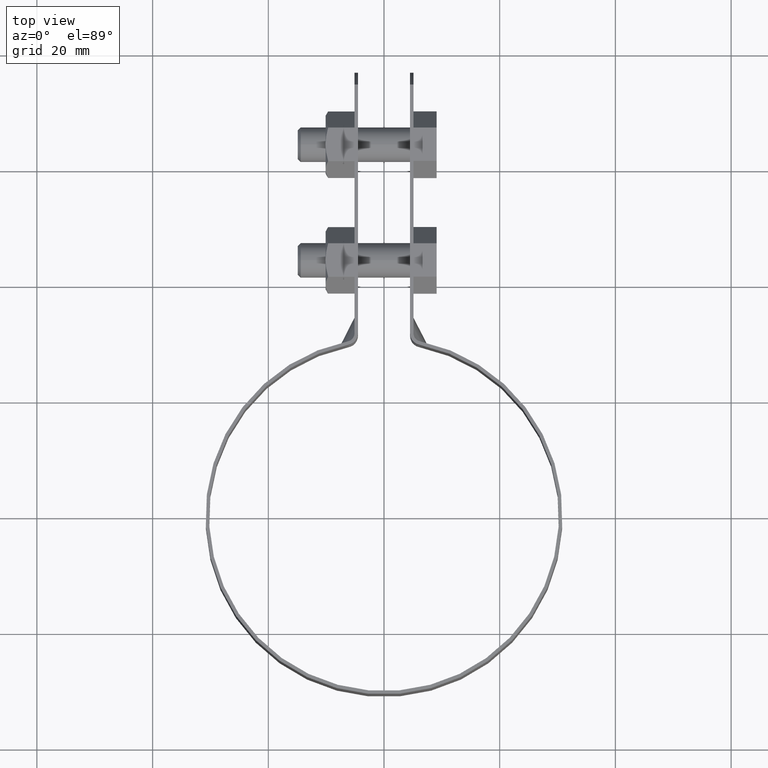
[diagram: clean part render]
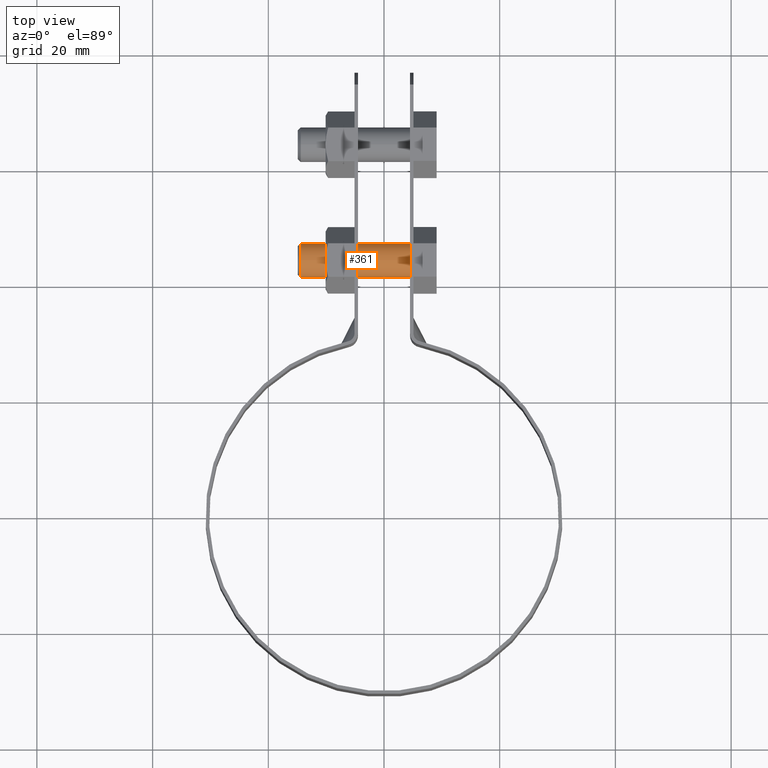
[diagram: same view with one face highlighted and labeled with its STEP entity id]
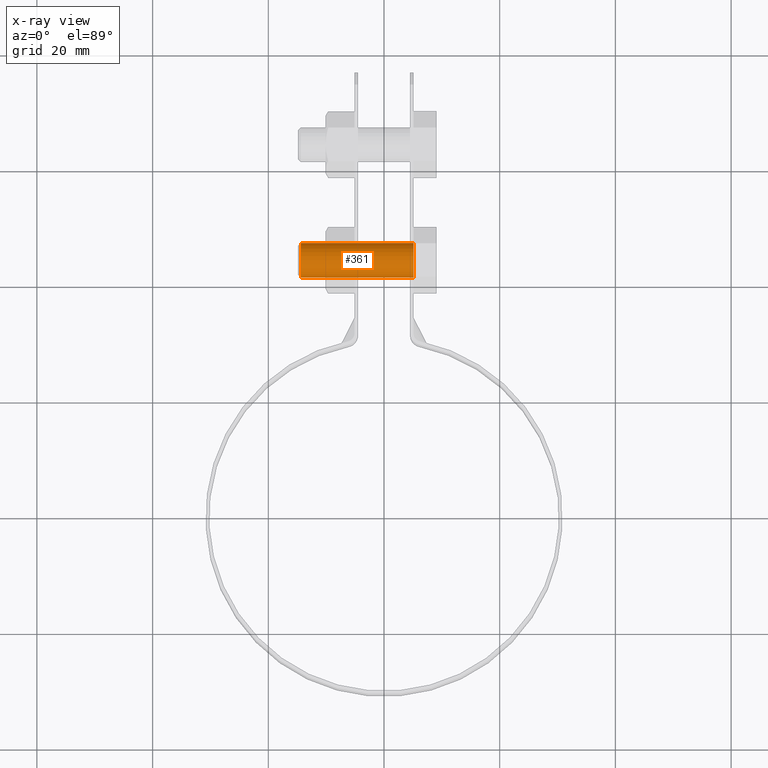
[diagram: x-ray of the same camera — body ghosted, the highlighted face saturated]
A machine part, top view. The second image highlights one B-rep face of the part: STEP entity #361.
The next image is the same camera in x-ray: the body ghosted, the highlighted face saturated — about 0% of this face is hidden behind the body in this view.
In plain terms, the highlighted cylindrical surface (bore or boss wall) has radius 3 mm, axis along (1, -0, 0).
Its self-contained STEP definition (entity closure, byte-faithful):
#361 = ADVANCED_FACE( '', ( #584, #585 ), #586, .T. );
#584 = FACE_OUTER_BOUND( '', #816, .T. );
#585 = FACE_OUTER_BOUND( '', #817, .T. );
#586 = CYLINDRICAL_SURFACE( '', #818, 3.00000000000000 );
#816 = EDGE_LOOP( '', ( #1565 ) );
#817 = EDGE_LOOP( '', ( #1566 ) );
#818 = AXIS2_PLACEMENT_3D( '', #1567, #1568, #1569 );
#1565 = ORIENTED_EDGE( '', *, *, #1845, .T. );
#1566 = ORIENTED_EDGE( '', *, *, #1839, .F. );
#1567 = CARTESIAN_POINT( '', ( 13.5487843911358, 44.4134167222669, -8.67361737988404E-016 ) );
#1568 = DIRECTION( '', ( 1.00000000000000, -6.06692130572647E-017, 0.000000000000000 ) );
#1569 = DIRECTION( '', ( 0.000000000000000, 0.000000000000000, 1.00000000000000 ) );
#1839 = EDGE_CURVE( '', #2230, #2230, #2231, .F. );
#1845 = EDGE_CURVE( '', #2240, #2240, #2241, .T. );
#2230 = VERTEX_POINT( '', #2910 );
#2231 = CIRCLE( '', #2911, 3.00000000000000 );
#2240 = VERTEX_POINT( '', #2925 );
#2241 = CIRCLE( '', #2926, 3.00000000000000 );
#2910 = CARTESIAN_POINT( '', ( 5.10000000000001, 44.4134167222669, 3.00000000000000 ) );
#2911 = AXIS2_PLACEMENT_3D( '', #3323, #3324, #3325 );
#2925 = CARTESIAN_POINT( '', ( -14.4000000000000, 44.4134167222669, -3.00000000000000 ) );
#2926 = AXIS2_PLACEMENT_3D( '', #3331, #3332, #3333 );
#3323 = CARTESIAN_POINT( '', ( 5.10000000000001, 44.4134167222669, -8.67361737988404E-016 ) );
#3324 = DIRECTION( '', ( -1.00000000000000, 6.06692130572647E-017, 0.000000000000000 ) );
#3325 = DIRECTION( '', ( 0.000000000000000, 0.000000000000000, 1.00000000000000 ) );
#3331 = CARTESIAN_POINT( '', ( -14.4000000000000, 44.4134167222669, -8.67361737988404E-016 ) );
#3332 = DIRECTION( '', ( 1.00000000000000, -6.06692130572647E-017, 0.000000000000000 ) );
#3333 = DIRECTION( '', ( 0.000000000000000, 0.000000000000000, -1.00000000000000 ) );